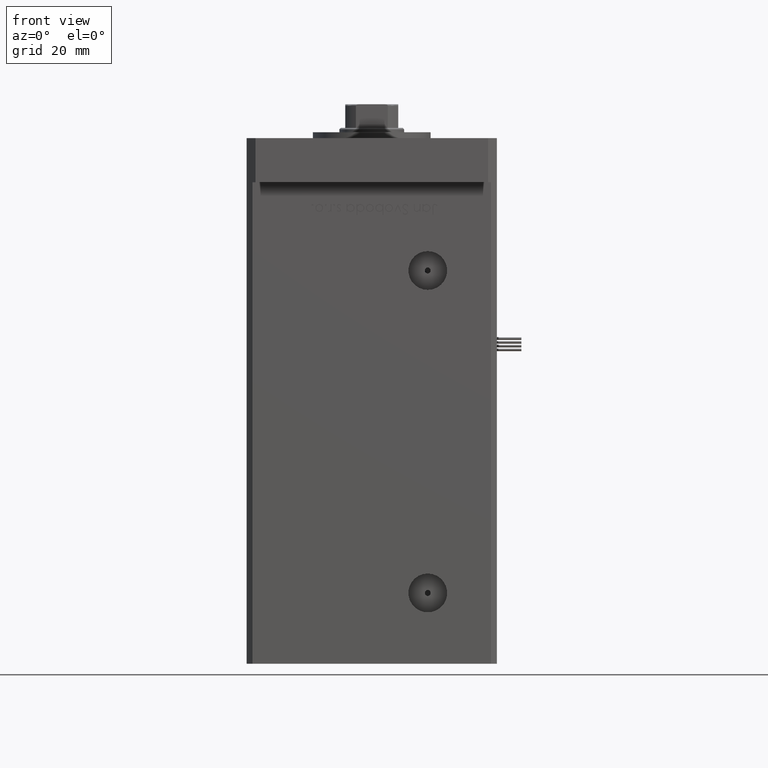
[diagram: clean part render]
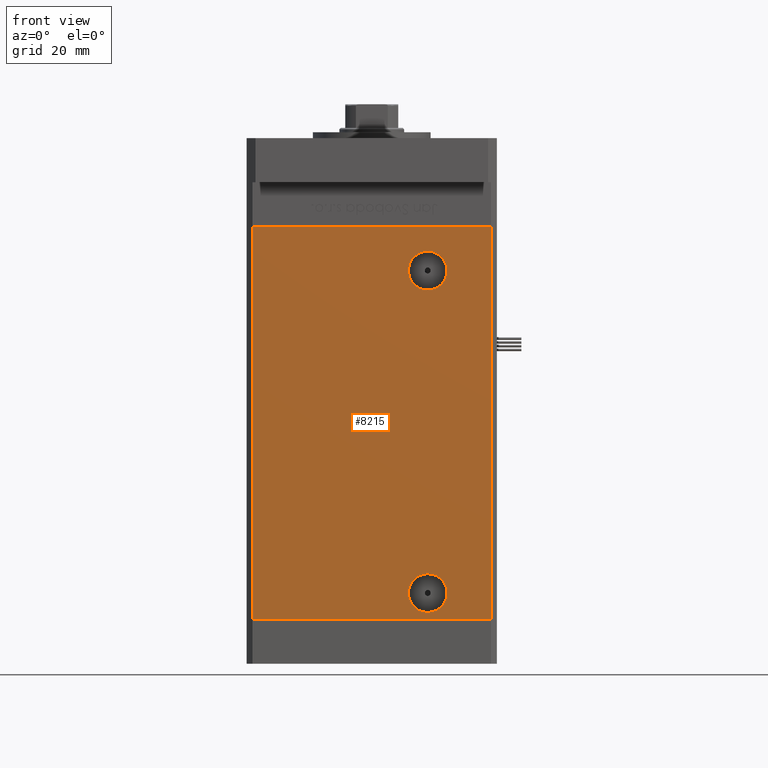
[diagram: same view with one face highlighted and labeled with its STEP entity id]
A machine part, front view. The second image highlights one B-rep face of the part: STEP entity #8215.
In plain terms, the highlighted planar face has unit normal (0, 1, 0).
Its self-contained STEP definition (entity closure, byte-faithful):
#1137 = CARTESIAN_POINT ( 'NONE',  ( 18.99999999999998934, -37.50000000000000711, 8.999999999999994671 ) ) ;
#2038 = DIRECTION ( 'NONE',  ( 0.000000000000000000, 0.000000000000000000, -1.000000000000000000 ) ) ;
#2725 = CARTESIAN_POINT ( 'NONE',  ( -40.49999999999998579, -37.50000000000000711, 133.5000000000000000 ) ) ;
#4013 = CARTESIAN_POINT ( 'NONE',  ( 40.49999999999998579, -37.50000000000000711, 0.000000000000000000 ) ) ;
#4204 = VERTEX_POINT ( 'NONE', #4013 ) ;
#4813 = VERTEX_POINT ( 'NONE', #53012 ) ;
#5539 = ORIENTED_EDGE ( 'NONE', *, *, #48193, .T. ) ;
#7316 = ORIENTED_EDGE ( 'NONE', *, *, #53295, .F. ) ;
#7759 = ORIENTED_EDGE ( 'NONE', *, *, #17006, .F. ) ;
#8215 = ADVANCED_FACE ( 'NONE', ( #15604, #19337, #32779 ), #50238, .F. ) ;
#8768 = AXIS2_PLACEMENT_3D ( 'NONE', #43945, #43665, #48799 ) ;
#10021 = DIRECTION ( 'NONE',  ( 0.000000000000000000, -1.000000000000000000, 0.000000000000000000 ) ) ;
#13722 = VECTOR ( 'NONE', #27896, 1000.000000000000000 ) ;
#13729 = EDGE_CURVE ( 'NONE', #14655, #4813, #46123, .T. ) ;
#14446 = LINE ( 'NONE', #15569, #13722 ) ;
#14619 = VECTOR ( 'NONE', #40978, 1000.000000000000000 ) ;
#14655 = VERTEX_POINT ( 'NONE', #36740 ) ;
#14861 = DIRECTION ( 'NONE',  ( -0.000000000000000000, 1.000000000000000000, -0.000000000000000000 ) ) ;
#15569 = CARTESIAN_POINT ( 'NONE',  ( 40.49999999999998579, -37.50000000000000711, 133.5000000000000000 ) ) ;
#15604 = FACE_BOUND ( 'NONE', #17690, .T. ) ;
#16469 = CIRCLE ( 'NONE', #45721, 6.579999999999998295 ) ;
#17006 = EDGE_CURVE ( 'NONE', #50245, #4204, #14446, .T. ) ;
#17284 = ORIENTED_EDGE ( 'NONE', *, *, #36490, .T. ) ;
#17596 = CARTESIAN_POINT ( 'NONE',  ( 18.99999999999998934, -37.50000000000000711, 2.419999999999995932 ) ) ;
#17690 = EDGE_LOOP ( 'NONE', ( #44515, #46582 ) ) ;
#19337 = FACE_OUTER_BOUND ( 'NONE', #31830, .T. ) ;
#20182 = DIRECTION ( 'NONE',  ( 0.000000000000000000, -0.000000000000000000, 1.000000000000000000 ) ) ;
#24098 = CARTESIAN_POINT ( 'NONE',  ( -40.49999999999998579, -37.50000000000000711, 133.5000000000000000 ) ) ;
#24335 = VERTEX_POINT ( 'NONE', #17596 ) ;
#24920 = ORIENTED_EDGE ( 'NONE', *, *, #55630, .T. ) ;
#27896 = DIRECTION ( 'NONE',  ( -0.000000000000000000, -0.000000000000000000, -1.000000000000000000 ) ) ;
#28495 = VECTOR ( 'NONE', #46314, 1000.000000000000000 ) ;
#28872 = CARTESIAN_POINT ( 'NONE',  ( -40.49999999999998579, -37.50000000000000711, 0.000000000000000000 ) ) ;
#30993 = LINE ( 'NONE', #48720, #34808 ) ;
#31524 = CARTESIAN_POINT ( 'NONE',  ( 18.99999999999998934, -37.50000000000000711, 8.999999999999994671 ) ) ;
#31830 = EDGE_LOOP ( 'NONE', ( #24920, #7759, #7316, #36737 ) ) ;
#32603 = CARTESIAN_POINT ( 'NONE',  ( 18.99999999999997513, -37.50000000000000711, 118.5000000000000000 ) ) ;
#32779 = FACE_BOUND ( 'NONE', #36828, .T. ) ;
#33609 = AXIS2_PLACEMENT_3D ( 'NONE', #2725, #37890, #20182 ) ;
#34808 = VECTOR ( 'NONE', #48440, 1000.000000000000000 ) ;
#36490 = EDGE_CURVE ( 'NONE', #40144, #38180, #48053, .T. ) ;
#36580 = CARTESIAN_POINT ( 'NONE',  ( 40.49999999999998579, -37.50000000000000711, 133.5000000000000000 ) ) ;
#36737 = ORIENTED_EDGE ( 'NONE', *, *, #13729, .T. ) ;
#36740 = CARTESIAN_POINT ( 'NONE',  ( -40.49999999999998579, -37.50000000000000711, 133.5000000000000000 ) ) ;
#36828 = EDGE_LOOP ( 'NONE', ( #17284, #5539 ) ) ;
#37890 = DIRECTION ( 'NONE',  ( 0.000000000000000000, 1.000000000000000000, 0.000000000000000000 ) ) ;
#38180 = VERTEX_POINT ( 'NONE', #43253 ) ;
#39194 = EDGE_CURVE ( 'NONE', #24335, #44658, #55471, .T. ) ;
#40144 = VERTEX_POINT ( 'NONE', #51028 ) ;
#40978 = DIRECTION ( 'NONE',  ( -0.000000000000000000, -0.000000000000000000, -1.000000000000000000 ) ) ;
#42704 = CARTESIAN_POINT ( 'NONE',  ( 18.99999999999998934, -37.50000000000000711, 15.57999999999999297 ) ) ;
#43253 = CARTESIAN_POINT ( 'NONE',  ( 18.99999999999997513, -37.50000000000000711, 125.0799999999999983 ) ) ;
#43665 = DIRECTION ( 'NONE',  ( -0.000000000000000000, 1.000000000000000000, -0.000000000000000000 ) ) ;
#43945 = CARTESIAN_POINT ( 'NONE',  ( 18.99999999999997513, -37.50000000000000711, 118.5000000000000000 ) ) ;
#44515 = ORIENTED_EDGE ( 'NONE', *, *, #39194, .F. ) ;
#44597 = DIRECTION ( 'NONE',  ( 0.000000000000000000, 0.000000000000000000, -1.000000000000000000 ) ) ;
#44658 = VERTEX_POINT ( 'NONE', #42704 ) ;
#45721 = AXIS2_PLACEMENT_3D ( 'NONE', #1137, #10021, #54933 ) ;
#46123 = LINE ( 'NONE', #24098, #14619 ) ;
#46314 = DIRECTION ( 'NONE',  ( 1.000000000000000000, 0.000000000000000000, 0.000000000000000000 ) ) ;
#46337 = AXIS2_PLACEMENT_3D ( 'NONE', #31524, #48970, #2038 ) ;
#46582 = ORIENTED_EDGE ( 'NONE', *, *, #52360, .F. ) ;
#48053 = CIRCLE ( 'NONE', #8768, 6.580000000000002736 ) ;
#48193 = EDGE_CURVE ( 'NONE', #38180, #40144, #53082, .T. ) ;
#48440 = DIRECTION ( 'NONE',  ( 1.000000000000000000, 0.000000000000000000, 0.000000000000000000 ) ) ;
#48720 = CARTESIAN_POINT ( 'NONE',  ( -40.49999999999998579, -37.50000000000000711, 133.5000000000000000 ) ) ;
#48799 = DIRECTION ( 'NONE',  ( 0.000000000000000000, 0.000000000000000000, -1.000000000000000000 ) ) ;
#48970 = DIRECTION ( 'NONE',  ( 0.000000000000000000, -1.000000000000000000, 0.000000000000000000 ) ) ;
#50238 = PLANE ( 'NONE',  #33609 ) ;
#50245 = VERTEX_POINT ( 'NONE', #36580 ) ;
#51028 = CARTESIAN_POINT ( 'NONE',  ( 18.99999999999997513, -37.50000000000000711, 111.9199999999999875 ) ) ;
#51241 = AXIS2_PLACEMENT_3D ( 'NONE', #32603, #14861, #44597 ) ;
#52360 = EDGE_CURVE ( 'NONE', #44658, #24335, #16469, .T. ) ;
#53012 = CARTESIAN_POINT ( 'NONE',  ( -40.49999999999998579, -37.50000000000000711, 0.000000000000000000 ) ) ;
#53082 = CIRCLE ( 'NONE', #51241, 6.580000000000002736 ) ;
#53295 = EDGE_CURVE ( 'NONE', #14655, #50245, #30993, .T. ) ;
#54921 = LINE ( 'NONE', #28872, #28495 ) ;
#54933 = DIRECTION ( 'NONE',  ( 0.000000000000000000, 0.000000000000000000, -1.000000000000000000 ) ) ;
#55471 = CIRCLE ( 'NONE', #46337, 6.579999999999998295 ) ;
#55630 = EDGE_CURVE ( 'NONE', #4813, #4204, #54921, .T. ) ;